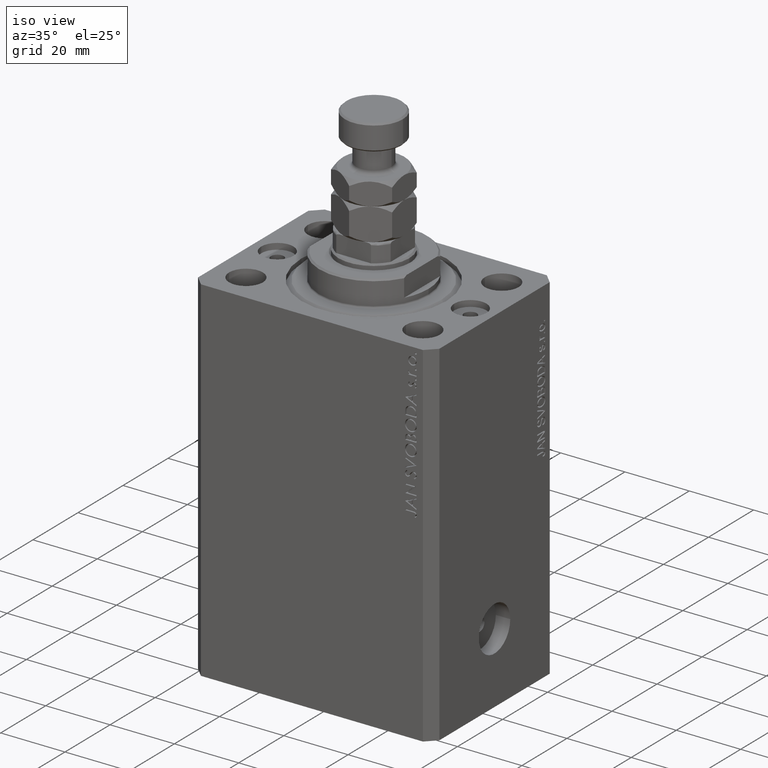
[diagram: clean part render]
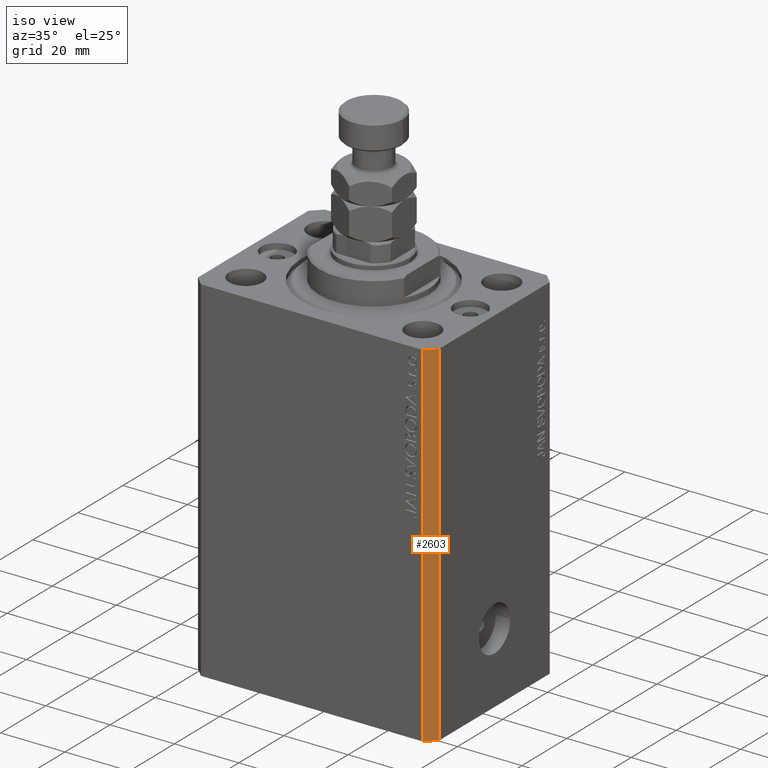
[diagram: same view with one face highlighted and labeled with its STEP entity id]
A machine part, iso view. The second image highlights one B-rep face of the part: STEP entity #2603.
In plain terms, the highlighted planar face has unit normal (0.7071, -0.7071, 0).
Its self-contained STEP definition (entity closure, byte-faithful):
#537 = VECTOR ( 'NONE', #15553, 1000.000000000000000 ) ;
#1357 = LINE ( 'NONE', #24078, #19012 ) ;
#1933 = DIRECTION ( 'NONE',  ( 0.7071067811865475727, -0.7071067811865475727, 0.000000000000000000 ) ) ;
#2603 = ADVANCED_FACE ( 'NONE', ( #32090 ), #31099, .T. ) ;
#3078 = CARTESIAN_POINT ( 'NONE',  ( 37.49999999999999289, -24.50000000000000000, -110.0000000000000000 ) ) ;
#6663 = VERTEX_POINT ( 'NONE', #11202 ) ;
#8631 = DIRECTION ( 'NONE',  ( 0.7071067811865474617, 0.7071067811865474617, 0.000000000000000000 ) ) ;
#11202 = CARTESIAN_POINT ( 'NONE',  ( 34.49999999999999289, -27.49999999999999645, 0.000000000000000000 ) ) ;
#15553 = DIRECTION ( 'NONE',  ( 0.000000000000000000, 0.000000000000000000, 1.000000000000000000 ) ) ;
#15985 = VERTEX_POINT ( 'NONE', #23003 ) ;
#16894 = EDGE_CURVE ( 'NONE', #37092, #15985, #19491, .T. ) ;
#17023 = DIRECTION ( 'NONE',  ( 0.7071067811865474617, 0.7071067811865474617, 0.000000000000000000 ) ) ;
#19012 = VECTOR ( 'NONE', #39158, 1000.000000000000000 ) ;
#19491 = LINE ( 'NONE', #45449, #537 ) ;
#20725 = CARTESIAN_POINT ( 'NONE',  ( 34.49999999999999289, -27.49999999999999645, -110.0000000000000000 ) ) ;
#23003 = CARTESIAN_POINT ( 'NONE',  ( 37.49999999999999289, -24.50000000000000000, 0.000000000000000000 ) ) ;
#24078 = CARTESIAN_POINT ( 'NONE',  ( 34.49999999999999289, -27.49999999999999645, -110.0000000000000000 ) ) ;
#24626 = AXIS2_PLACEMENT_3D ( 'NONE', #35054, #1933, #17023 ) ;
#25156 = EDGE_CURVE ( 'NONE', #37917, #6663, #1357, .T. ) ;
#28707 = VECTOR ( 'NONE', #32555, 1000.000000000000114 ) ;
#31081 = ORIENTED_EDGE ( 'NONE', *, *, #25156, .F. ) ;
#31099 = PLANE ( 'NONE',  #24626 ) ;
#32090 = FACE_OUTER_BOUND ( 'NONE', #43242, .T. ) ;
#32318 = CARTESIAN_POINT ( 'NONE',  ( 34.49999999999999289, -27.49999999999999645, 0.000000000000000000 ) ) ;
#32555 = DIRECTION ( 'NONE',  ( 0.7071067811865474617, 0.7071067811865474617, 0.000000000000000000 ) ) ;
#32588 = ORIENTED_EDGE ( 'NONE', *, *, #41319, .T. ) ;
#35054 = CARTESIAN_POINT ( 'NONE',  ( 34.49999999999999289, -27.49999999999999645, -110.0000000000000000 ) ) ;
#35313 = ORIENTED_EDGE ( 'NONE', *, *, #35851, .F. ) ;
#35851 = EDGE_CURVE ( 'NONE', #6663, #15985, #36250, .T. ) ;
#36250 = LINE ( 'NONE', #32318, #28707 ) ;
#37092 = VERTEX_POINT ( 'NONE', #3078 ) ;
#37917 = VERTEX_POINT ( 'NONE', #20725 ) ;
#39158 = DIRECTION ( 'NONE',  ( 0.000000000000000000, 0.000000000000000000, 1.000000000000000000 ) ) ;
#41319 = EDGE_CURVE ( 'NONE', #37917, #37092, #43486, .T. ) ;
#43242 = EDGE_LOOP ( 'NONE', ( #35313, #31081, #32588, #43729 ) ) ;
#43486 = LINE ( 'NONE', #46698, #46897 ) ;
#43729 = ORIENTED_EDGE ( 'NONE', *, *, #16894, .T. ) ;
#45449 = CARTESIAN_POINT ( 'NONE',  ( 37.49999999999999289, -24.50000000000000000, -110.0000000000000000 ) ) ;
#46698 = CARTESIAN_POINT ( 'NONE',  ( 34.49999999999999289, -27.49999999999999645, -110.0000000000000000 ) ) ;
#46897 = VECTOR ( 'NONE', #8631, 1000.000000000000114 ) ;